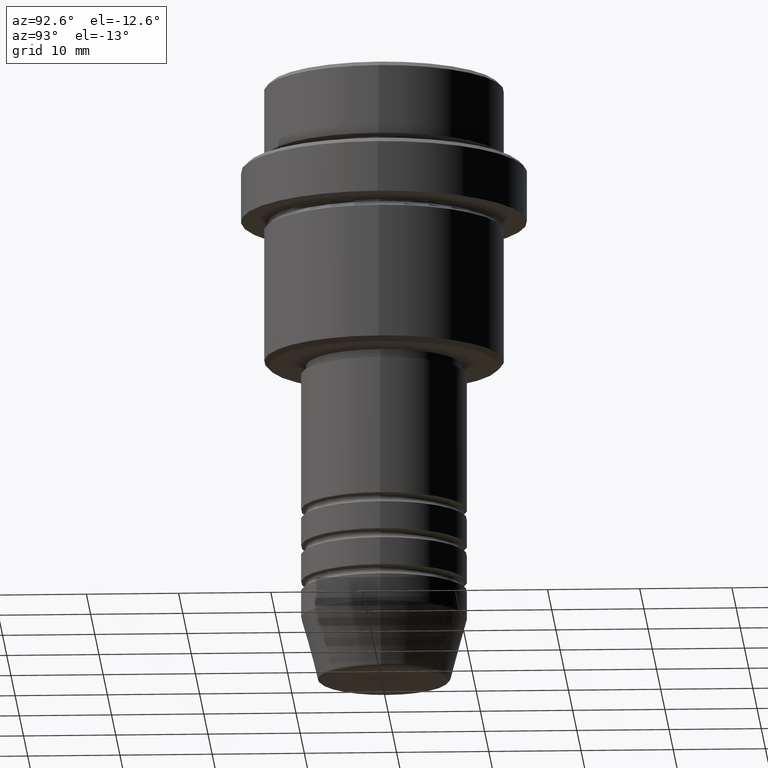
[diagram: clean part render]
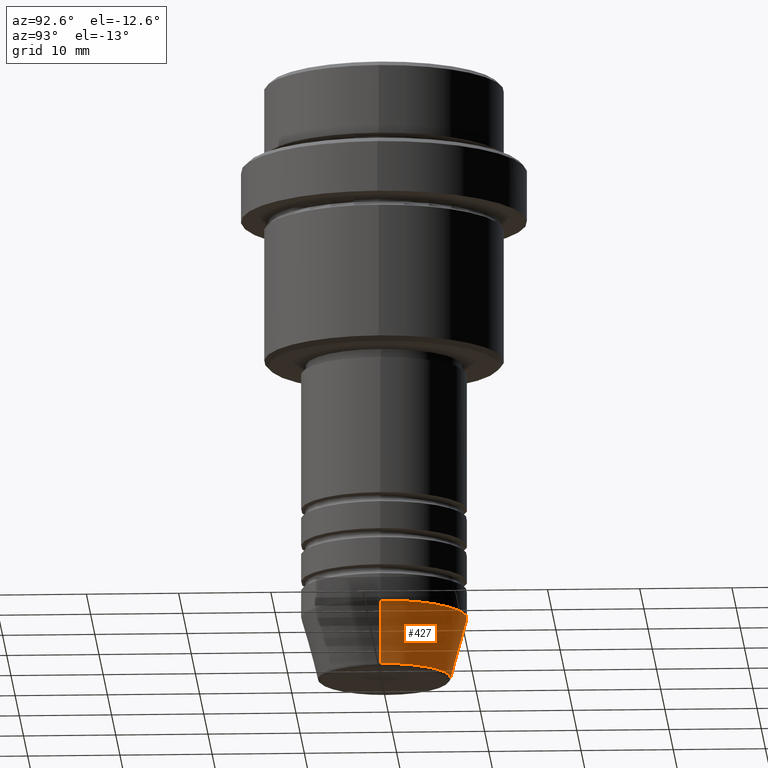
[diagram: same view with one face highlighted and labeled with its STEP entity id]
A machine part, auxiliary view. The second image highlights one B-rep face of the part: STEP entity #427.
In plain terms, the highlighted conical surface has half-angle 15 deg.
Its self-contained STEP definition (entity closure, byte-faithful):
#8 = DIRECTION ( 'NONE',  ( 1.000000000000000000, 0.000000000000000000, 0.000000000000000000 ) ) ;
#9 = DIRECTION ( 'NONE',  ( 1.000000000000000000, 0.000000000000000000, 0.000000000000000000 ) ) ;
#35 = CARTESIAN_POINT ( 'NONE',  ( 0.000000000000000000, 0.000000000000000000, -59.00000000000000711 ) ) ;
#45 = DIRECTION ( 'NONE',  ( 1.000000000000000000, 0.000000000000000000, 0.000000000000000000 ) ) ;
#105 = EDGE_LOOP ( 'NONE', ( #1102, #197, #1409, #1077 ) ) ;
#113 = EDGE_CURVE ( 'NONE', #404, #1134, #460, .T. ) ;
#172 = CARTESIAN_POINT ( 'NONE',  ( -7.223655072137192157, 9.934123627281763137E-16, -65.62940952255125637 ) ) ;
#191 = DIRECTION ( 'NONE',  ( 0.2588190451025213501, 0.000000000000000000, 0.9659258262890680902 ) ) ;
#197 = ORIENTED_EDGE ( 'NONE', *, *, #279, .T. ) ;
#224 = AXIS2_PLACEMENT_3D ( 'NONE', #1026, #706, #45 ) ;
#279 = EDGE_CURVE ( 'NONE', #286, #1134, #1404, .T. ) ;
#286 = VERTEX_POINT ( 'NONE', #172 ) ;
#293 = AXIS2_PLACEMENT_3D ( 'NONE', #542, #1201, #8 ) ;
#404 = VERTEX_POINT ( 'NONE', #506 ) ;
#420 = AXIS2_PLACEMENT_3D ( 'NONE', #35, #476, #9 ) ;
#427 = ADVANCED_FACE ( 'NONE', ( #670 ), #1323, .T. ) ;
#460 = CIRCLE ( 'NONE', #420, 9.000000000000000000 ) ;
#476 = DIRECTION ( 'NONE',  ( -0.000000000000000000, -0.000000000000000000, 1.000000000000000000 ) ) ;
#506 = CARTESIAN_POINT ( 'NONE',  ( 9.000000000000000000, 0.000000000000000000, -59.00000000000000711 ) ) ;
#542 = CARTESIAN_POINT ( 'NONE',  ( 0.000000000000000000, 0.000000000000000000, -59.00000000000000711 ) ) ;
#636 = CARTESIAN_POINT ( 'NONE',  ( -9.000000000000000000, 1.102182119232617714E-15, -59.00000000000000711 ) ) ;
#670 = FACE_OUTER_BOUND ( 'NONE', #105, .T. ) ;
#682 = CIRCLE ( 'NONE', #224, 7.223655072137192157 ) ;
#701 = EDGE_CURVE ( 'NONE', #858, #286, #682, .T. ) ;
#706 = DIRECTION ( 'NONE',  ( -0.000000000000000000, -0.000000000000000000, 1.000000000000000000 ) ) ;
#759 = CARTESIAN_POINT ( 'NONE',  ( 7.223655072137192157, 0.000000000000000000, -65.62940952255125637 ) ) ;
#858 = VERTEX_POINT ( 'NONE', #759 ) ;
#890 = EDGE_CURVE ( 'NONE', #858, #404, #964, .T. ) ;
#964 = LINE ( 'NONE', #1388, #1356 ) ;
#1026 = CARTESIAN_POINT ( 'NONE',  ( 0.000000000000000000, 0.000000000000000000, -65.62940952255125637 ) ) ;
#1077 = ORIENTED_EDGE ( 'NONE', *, *, #890, .F. ) ;
#1102 = ORIENTED_EDGE ( 'NONE', *, *, #701, .T. ) ;
#1134 = VERTEX_POINT ( 'NONE', #636 ) ;
#1201 = DIRECTION ( 'NONE',  ( -0.000000000000000000, -0.000000000000000000, 1.000000000000000000 ) ) ;
#1211 = VECTOR ( 'NONE', #1292, 1000.000000000000000 ) ;
#1265 = CARTESIAN_POINT ( 'NONE',  ( -9.000000000000000000, 1.102182119232617714E-15, -59.00000000000000711 ) ) ;
#1292 = DIRECTION ( 'NONE',  ( -0.2588190451025213501, 3.169619151431772337E-17, 0.9659258262890680902 ) ) ;
#1323 = CONICAL_SURFACE ( 'NONE', #293, 9.000000000000000000, 0.2617993877991500740 ) ;
#1356 = VECTOR ( 'NONE', #191, 1000.000000000000000 ) ;
#1388 = CARTESIAN_POINT ( 'NONE',  ( 9.000000000000000000, 0.000000000000000000, -59.00000000000000711 ) ) ;
#1404 = LINE ( 'NONE', #1265, #1211 ) ;
#1409 = ORIENTED_EDGE ( 'NONE', *, *, #113, .F. ) ;